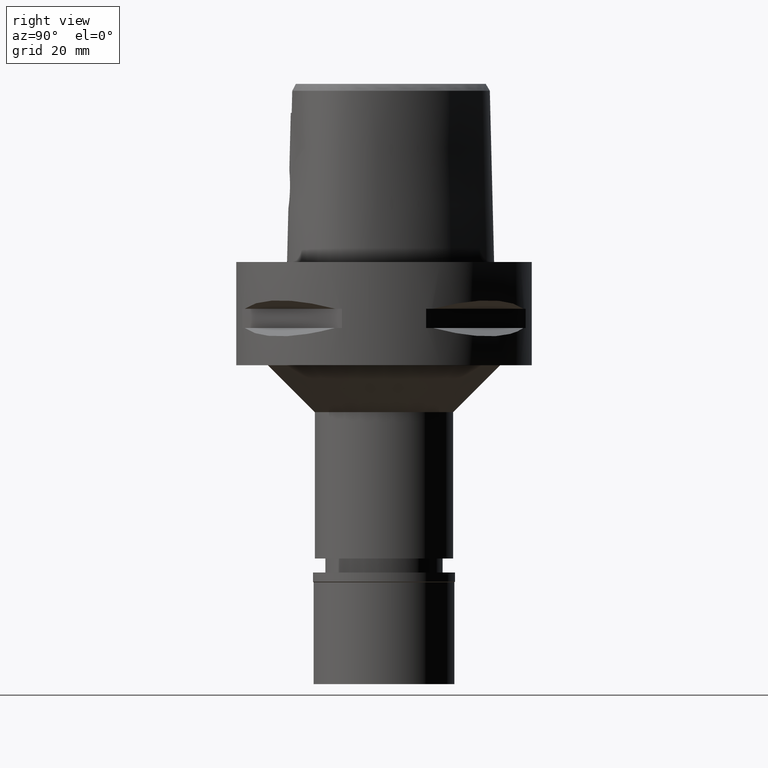
[diagram: clean part render]
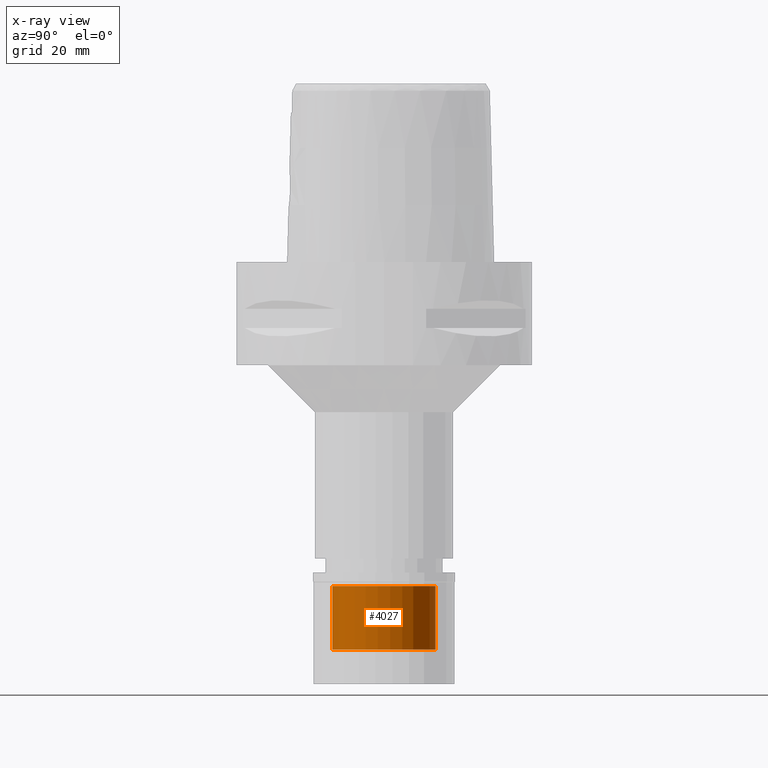
[diagram: x-ray — body ghosted, one internal face saturated and labeled with its STEP entity id]
A machine part, right view, then the same camera in x-ray: the body is ghosted and one INTERNAL B-rep face — a face not visible from any outside direction — is saturated and labeled: STEP entity #4027.
In plain terms, the highlighted cylindrical surface (partial cylindrical patch) has radius 11 mm, axis along (0, 0, -1).
Its self-contained STEP definition (entity closure, byte-faithful):
#220 = VERTEX_POINT ( 'NONE', #3321 ) ;
#757 = EDGE_CURVE ( 'NONE', #2101, #1320, #2003, .T. ) ;
#817 = CARTESIAN_POINT ( 'NONE',  ( 0.0000000000000000000, -11.00000000000000000, -2.899999999999999911 ) ) ;
#877 = DIRECTION ( 'NONE',  ( 0.0000000000000000000, 0.0000000000000000000, -1.000000000000000000 ) ) ;
#888 = LINE ( 'NONE', #4673, #2846 ) ;
#994 = ORIENTED_EDGE ( 'NONE', *, *, #3728, .F. ) ;
#1006 = EDGE_LOOP ( 'NONE', ( #2784, #4816, #2158, #994 ) ) ;
#1221 = CARTESIAN_POINT ( 'NONE',  ( 0.0000000000000000000, 0.0000000000000000000, 0.0000000000000000000 ) ) ;
#1231 = DIRECTION ( 'NONE',  ( 0.0000000000000000000, 0.0000000000000000000, 1.000000000000000000 ) ) ;
#1236 = DIRECTION ( 'NONE',  ( 0.0000000000000000000, 0.0000000000000000000, 1.000000000000000000 ) ) ;
#1320 = VERTEX_POINT ( 'NONE', #4486 ) ;
#1599 = FACE_OUTER_BOUND ( 'NONE', #1006, .T. ) ;
#1714 = EDGE_CURVE ( 'NONE', #2752, #220, #3686, .T. ) ;
#1940 = LINE ( 'NONE', #3895, #2758 ) ;
#2003 = CIRCLE ( 'NONE', #4253, 11.00000000000000000 ) ;
#2101 = VERTEX_POINT ( 'NONE', #817 ) ;
#2158 = ORIENTED_EDGE ( 'NONE', *, *, #757, .T. ) ;
#2416 = DIRECTION ( 'NONE',  ( 0.0000000000000000000, 0.0000000000000000000, -1.000000000000000000 ) ) ;
#2728 = EDGE_CURVE ( 'NONE', #220, #2101, #1940, .T. ) ;
#2752 = VERTEX_POINT ( 'NONE', #4631 ) ;
#2758 = VECTOR ( 'NONE', #1236, 1000.000000000000000 ) ;
#2784 = ORIENTED_EDGE ( 'NONE', *, *, #1714, .T. ) ;
#2846 = VECTOR ( 'NONE', #1231, 1000.000000000000000 ) ;
#2879 = DIRECTION ( 'NONE',  ( 0.0000000000000000000, 0.0000000000000000000, 1.000000000000000000 ) ) ;
#3135 = CYLINDRICAL_SURFACE ( 'NONE', #4218, 11.00000000000000000 ) ;
#3321 = CARTESIAN_POINT ( 'NONE',  ( 0.0000000000000000000, -11.00000000000000000, -16.50000000000000000 ) ) ;
#3344 = DIRECTION ( 'NONE',  ( 0.0000000000000000000, -1.000000000000000000, 0.0000000000000000000 ) ) ;
#3598 = DIRECTION ( 'NONE',  ( 0.0000000000000000000, 1.000000000000000000, 0.0000000000000000000 ) ) ;
#3686 = CIRCLE ( 'NONE', #3985, 11.00000000000000000 ) ;
#3728 = EDGE_CURVE ( 'NONE', #2752, #1320, #888, .T. ) ;
#3895 = CARTESIAN_POINT ( 'NONE',  ( 0.0000000000000000000, -11.00000000000000000, -16.50000000000000000 ) ) ;
#3901 = DIRECTION ( 'NONE',  ( 0.0000000000000000000, -1.000000000000000000, 0.0000000000000000000 ) ) ;
#3937 = CARTESIAN_POINT ( 'NONE',  ( 0.0000000000000000000, 0.0000000000000000000, -16.50000000000000000 ) ) ;
#3985 = AXIS2_PLACEMENT_3D ( 'NONE', #3937, #2416, #3598 ) ;
#4027 = ADVANCED_FACE ( 'NONE', ( #1599 ), #3135, .F. ) ;
#4218 = AXIS2_PLACEMENT_3D ( 'NONE', #1221, #877, #3901 ) ;
#4253 = AXIS2_PLACEMENT_3D ( 'NONE', #4413, #2879, #3344 ) ;
#4413 = CARTESIAN_POINT ( 'NONE',  ( 0.0000000000000000000, 0.0000000000000000000, -2.899999999999999911 ) ) ;
#4486 = CARTESIAN_POINT ( 'NONE',  ( 0.0000000000000000000, 11.00000000000000000, -2.899999999999999911 ) ) ;
#4631 = CARTESIAN_POINT ( 'NONE',  ( 0.0000000000000000000, 11.00000000000000000, -16.50000000000000000 ) ) ;
#4673 = CARTESIAN_POINT ( 'NONE',  ( 0.0000000000000000000, 11.00000000000000000, -16.50000000000000000 ) ) ;
#4816 = ORIENTED_EDGE ( 'NONE', *, *, #2728, .T. ) ;